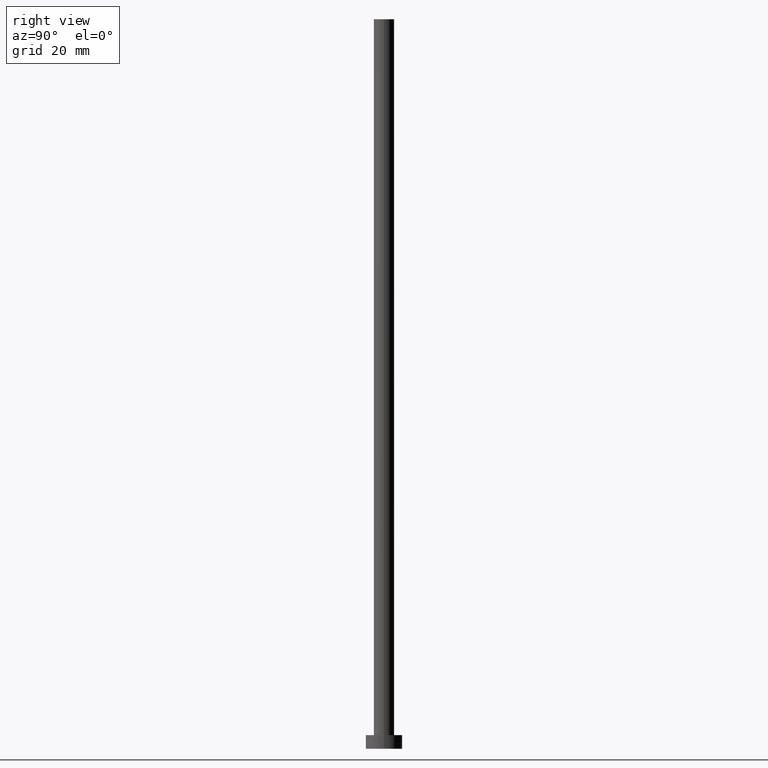
[diagram: clean part render]
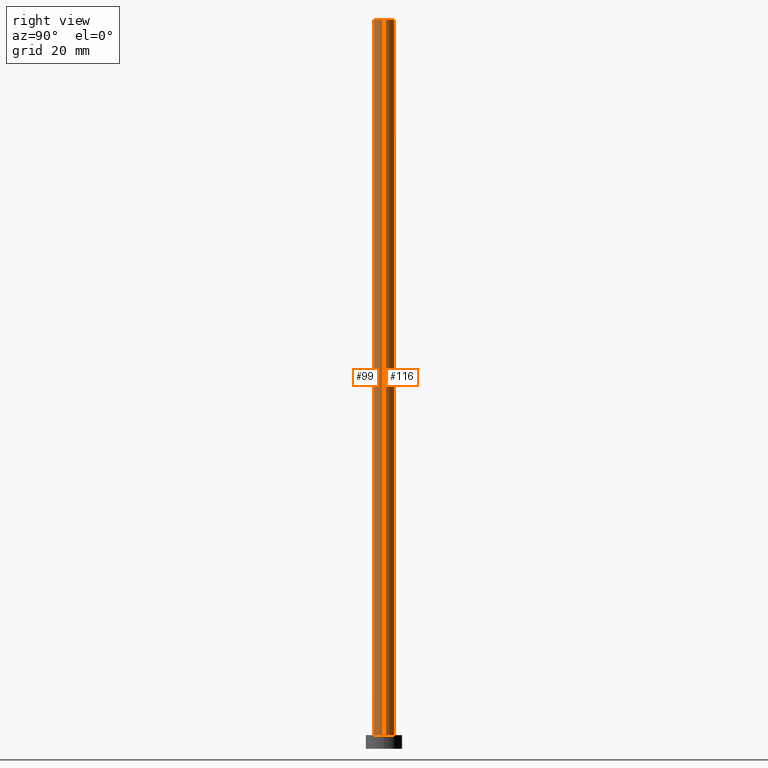
[diagram: same view with one multi-face feature highlighted, each face labeled with its STEP entity id]
A machine part, right view. The highlighted faces form ONE feature: a constant-radius fillet chain: 2 tangent blend faces with common blend radius 2.25 mm. The faces share edges in the B-rep.
Their STEP definitions:
[1] entity #116 (Cylinder):
#9 = ORIENTED_EDGE ( 'NONE', *, *, #255, .F. ) ;
#10 = CARTESIAN_POINT ( 'NONE',  ( 0.000000000000000000, 0.000000000000000000, 160.0000000000000000 ) ) ;
#15 = VERTEX_POINT ( 'NONE', #244 ) ;
#17 = ORIENTED_EDGE ( 'NONE', *, *, #196, .F. ) ;
#25 = CIRCLE ( 'NONE', #195, 2.250000000000000000 ) ;
#29 = FACE_OUTER_BOUND ( 'NONE', #91, .T. ) ;
#32 = ORIENTED_EDGE ( 'NONE', *, *, #111, .T. ) ;
#33 = DIRECTION ( 'NONE',  ( -0.000000000000000000, -0.000000000000000000, -1.000000000000000000 ) ) ;
#37 = EDGE_CURVE ( 'NONE', #85, #15, #67, .T. ) ;
#56 = VECTOR ( 'NONE', #92, 1000.000000000000000 ) ;
#67 = LINE ( 'NONE', #151, #161 ) ;
#68 = LINE ( 'NONE', #241, #56 ) ;
#74 = DIRECTION ( 'NONE',  ( -0.000000000000000000, -0.000000000000000000, -1.000000000000000000 ) ) ;
#85 = VERTEX_POINT ( 'NONE', #192 ) ;
#88 = ORIENTED_EDGE ( 'NONE', *, *, #37, .T. ) ;
#91 = EDGE_LOOP ( 'NONE', ( #9, #88, #32, #17 ) ) ;
#92 = DIRECTION ( 'NONE',  ( -0.000000000000000000, -0.000000000000000000, -1.000000000000000000 ) ) ;
#111 = EDGE_CURVE ( 'NONE', #15, #248, #181, .T. ) ;
#113 = VERTEX_POINT ( 'NONE', #204 ) ;
#116 = ADVANCED_FACE ( 'NONE', ( #29 ), #206, .T. ) ;
#124 = DIRECTION ( 'NONE',  ( 0.000000000000000000, 0.000000000000000000, 1.000000000000000000 ) ) ;
#132 = DIRECTION ( 'NONE',  ( 1.000000000000000000, 0.000000000000000000, 0.000000000000000000 ) ) ;
#151 = CARTESIAN_POINT ( 'NONE',  ( 2.250000000000000000, 2.755455298081544285E-16, 160.0000000000000000 ) ) ;
#159 = DIRECTION ( 'NONE',  ( -1.000000000000000000, 0.000000000000000000, 0.000000000000000000 ) ) ;
#161 = VECTOR ( 'NONE', #33, 1000.000000000000000 ) ;
#181 = CIRCLE ( 'NONE', #229, 2.250000000000000000 ) ;
#192 = CARTESIAN_POINT ( 'NONE',  ( 2.250000000000000000, 2.755455298081544285E-16, 160.0000000000000000 ) ) ;
#195 = AXIS2_PLACEMENT_3D ( 'NONE', #243, #226, #132 ) ;
#196 = EDGE_CURVE ( 'NONE', #113, #248, #68, .T. ) ;
#201 = DIRECTION ( 'NONE',  ( 1.000000000000000000, 0.000000000000000000, 0.000000000000000000 ) ) ;
#204 = CARTESIAN_POINT ( 'NONE',  ( -2.250000000000000000, 0.000000000000000000, 160.0000000000000000 ) ) ;
#206 = CYLINDRICAL_SURFACE ( 'NONE', #249, 2.250000000000000000 ) ;
#223 = CARTESIAN_POINT ( 'NONE',  ( 0.000000000000000000, 0.000000000000000000, 3.000000000000000000 ) ) ;
#226 = DIRECTION ( 'NONE',  ( 0.000000000000000000, 0.000000000000000000, 1.000000000000000000 ) ) ;
#229 = AXIS2_PLACEMENT_3D ( 'NONE', #223, #124, #201 ) ;
#241 = CARTESIAN_POINT ( 'NONE',  ( -2.250000000000000000, 0.000000000000000000, 160.0000000000000000 ) ) ;
#243 = CARTESIAN_POINT ( 'NONE',  ( 0.000000000000000000, 0.000000000000000000, 160.0000000000000000 ) ) ;
#244 = CARTESIAN_POINT ( 'NONE',  ( 2.250000000000000000, 2.755455298081544285E-16, 3.000000000000000000 ) ) ;
#247 = CARTESIAN_POINT ( 'NONE',  ( -2.250000000000000000, 0.000000000000000000, 3.000000000000000000 ) ) ;
#248 = VERTEX_POINT ( 'NONE', #247 ) ;
#249 = AXIS2_PLACEMENT_3D ( 'NONE', #10, #74, #159 ) ;
#255 = EDGE_CURVE ( 'NONE', #85, #113, #25, .T. ) ;
[2] entity #99 (Cylinder):
#8 = CARTESIAN_POINT ( 'NONE',  ( 0.000000000000000000, 0.000000000000000000, 160.0000000000000000 ) ) ;
#15 = VERTEX_POINT ( 'NONE', #244 ) ;
#31 = CARTESIAN_POINT ( 'NONE',  ( 0.000000000000000000, 0.000000000000000000, 160.0000000000000000 ) ) ;
#33 = DIRECTION ( 'NONE',  ( -0.000000000000000000, -0.000000000000000000, -1.000000000000000000 ) ) ;
#36 = AXIS2_PLACEMENT_3D ( 'NONE', #8, #150, #188 ) ;
#37 = EDGE_CURVE ( 'NONE', #85, #15, #67, .T. ) ;
#48 = EDGE_LOOP ( 'NONE', ( #211, #210, #72, #168 ) ) ;
#50 = CIRCLE ( 'NONE', #120, 2.250000000000000000 ) ;
#51 = DIRECTION ( 'NONE',  ( 1.000000000000000000, 0.000000000000000000, 0.000000000000000000 ) ) ;
#56 = VECTOR ( 'NONE', #92, 1000.000000000000000 ) ;
#63 = DIRECTION ( 'NONE',  ( 1.000000000000000000, 0.000000000000000000, 0.000000000000000000 ) ) ;
#67 = LINE ( 'NONE', #151, #161 ) ;
#68 = LINE ( 'NONE', #241, #56 ) ;
#72 = ORIENTED_EDGE ( 'NONE', *, *, #196, .T. ) ;
#73 = AXIS2_PLACEMENT_3D ( 'NONE', #31, #225, #63 ) ;
#85 = VERTEX_POINT ( 'NONE', #192 ) ;
#92 = DIRECTION ( 'NONE',  ( -0.000000000000000000, -0.000000000000000000, -1.000000000000000000 ) ) ;
#99 = ADVANCED_FACE ( 'NONE', ( #209 ), #128, .T. ) ;
#113 = VERTEX_POINT ( 'NONE', #204 ) ;
#120 = AXIS2_PLACEMENT_3D ( 'NONE', #148, #230, #51 ) ;
#128 = CYLINDRICAL_SURFACE ( 'NONE', #36, 2.250000000000000000 ) ;
#130 = EDGE_CURVE ( 'NONE', #248, #15, #50, .T. ) ;
#148 = CARTESIAN_POINT ( 'NONE',  ( 0.000000000000000000, 0.000000000000000000, 3.000000000000000000 ) ) ;
#150 = DIRECTION ( 'NONE',  ( -0.000000000000000000, -0.000000000000000000, -1.000000000000000000 ) ) ;
#151 = CARTESIAN_POINT ( 'NONE',  ( 2.250000000000000000, 2.755455298081544285E-16, 160.0000000000000000 ) ) ;
#161 = VECTOR ( 'NONE', #33, 1000.000000000000000 ) ;
#168 = ORIENTED_EDGE ( 'NONE', *, *, #130, .T. ) ;
#188 = DIRECTION ( 'NONE',  ( -1.000000000000000000, 0.000000000000000000, 0.000000000000000000 ) ) ;
#192 = CARTESIAN_POINT ( 'NONE',  ( 2.250000000000000000, 2.755455298081544285E-16, 160.0000000000000000 ) ) ;
#196 = EDGE_CURVE ( 'NONE', #113, #248, #68, .T. ) ;
#197 = EDGE_CURVE ( 'NONE', #113, #85, #235, .T. ) ;
#204 = CARTESIAN_POINT ( 'NONE',  ( -2.250000000000000000, 0.000000000000000000, 160.0000000000000000 ) ) ;
#209 = FACE_OUTER_BOUND ( 'NONE', #48, .T. ) ;
#210 = ORIENTED_EDGE ( 'NONE', *, *, #197, .F. ) ;
#211 = ORIENTED_EDGE ( 'NONE', *, *, #37, .F. ) ;
#225 = DIRECTION ( 'NONE',  ( 0.000000000000000000, 0.000000000000000000, 1.000000000000000000 ) ) ;
#230 = DIRECTION ( 'NONE',  ( 0.000000000000000000, 0.000000000000000000, 1.000000000000000000 ) ) ;
#235 = CIRCLE ( 'NONE', #73, 2.250000000000000000 ) ;
#241 = CARTESIAN_POINT ( 'NONE',  ( -2.250000000000000000, 0.000000000000000000, 160.0000000000000000 ) ) ;
#244 = CARTESIAN_POINT ( 'NONE',  ( 2.250000000000000000, 2.755455298081544285E-16, 3.000000000000000000 ) ) ;
#247 = CARTESIAN_POINT ( 'NONE',  ( -2.250000000000000000, 0.000000000000000000, 3.000000000000000000 ) ) ;
#248 = VERTEX_POINT ( 'NONE', #247 ) ;